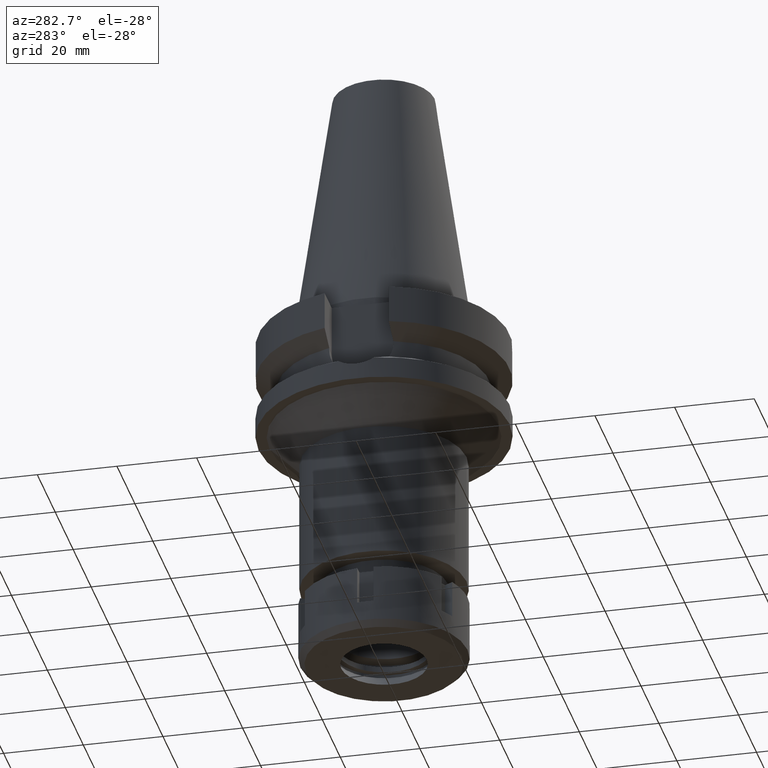
[diagram: clean part render]
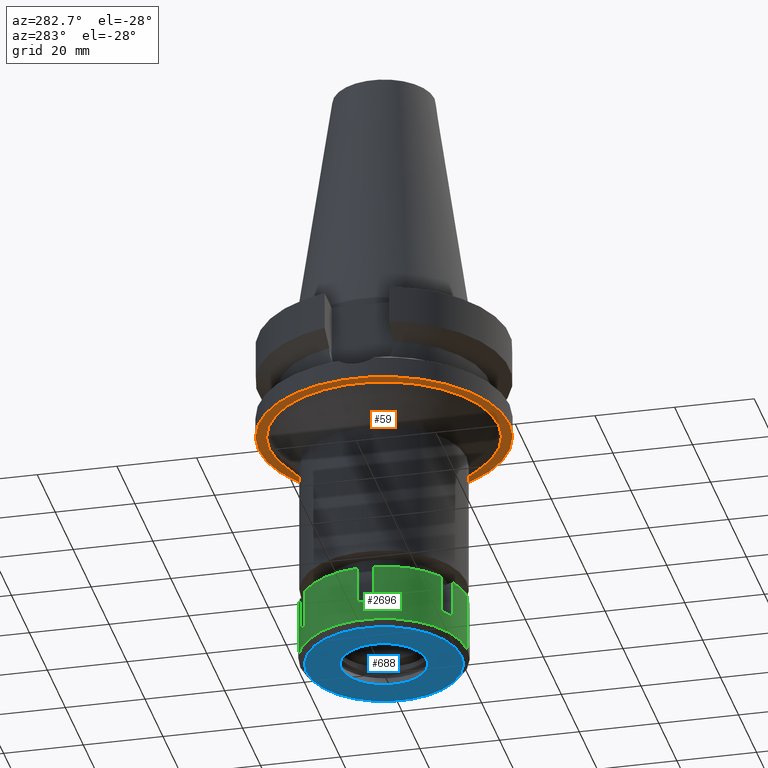
[diagram: same view with three faces highlighted in distinct colors, each labeled with its STEP entity id]
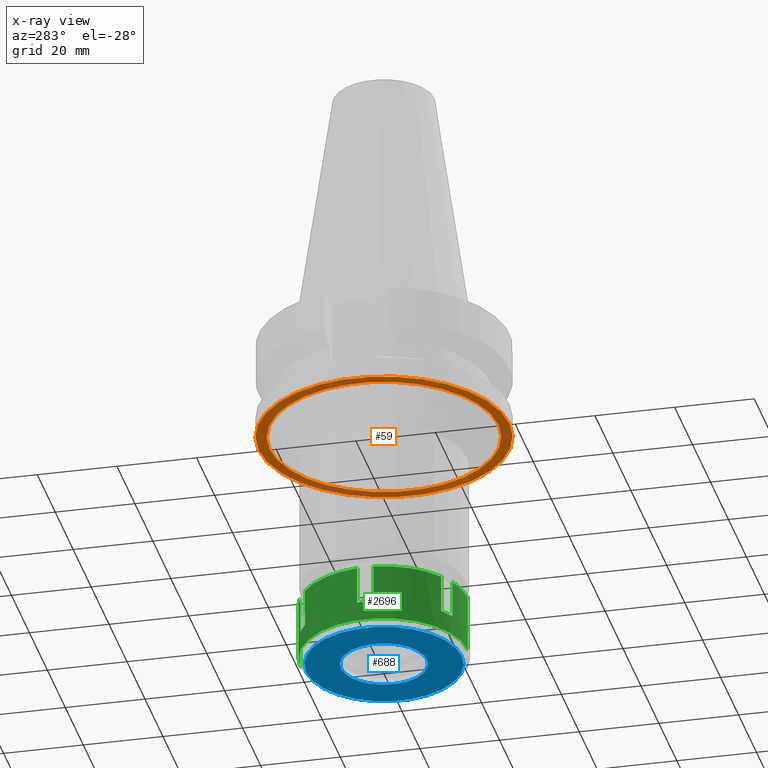
[diagram: x-ray of the same camera — body ghosted, the three highlighted faces saturated]
A machine part, auxiliary view with three faces highlighted in distinct colors.
The next image is the same camera in x-ray (body ghosted, the three faces saturated) — at least one of them is partly hidden behind the body in this view.
Their STEP definitions:

[orange] entity #59 — the highlighted planar face has unit normal (0, 0, -1).
#8 = CARTESIAN_POINT ( 'NONE',  ( 0.0000000000000000000, -28.75000000000000000, -27.00000000000000000 ) ) ;
#13 = DIRECTION ( 'NONE',  ( 0.0000000000000000000, -1.000000000000000000, 0.0000000000000000000 ) ) ;
#59 = ADVANCED_FACE ( 'NONE', ( #1862, #578 ), #1322, .T. ) ;
#101 = AXIS2_PLACEMENT_3D ( 'NONE', #1651, #817, #3269 ) ;
#266 = CARTESIAN_POINT ( 'NONE',  ( 0.0000000000000000000, 28.75000000000000000, -27.00000000000000000 ) ) ;
#277 = CARTESIAN_POINT ( 'NONE',  ( 0.0000000000000000000, -31.50000000000000000, -27.00000000000000000 ) ) ;
#327 = CARTESIAN_POINT ( 'NONE',  ( 0.0000000000000000000, 2.115822274886999895E-14, -27.00000000000000000 ) ) ;
#329 = EDGE_LOOP ( 'NONE', ( #2249, #577 ) ) ;
#470 = VERTEX_POINT ( 'NONE', #277 ) ;
#577 = ORIENTED_EDGE ( 'NONE', *, *, #944, .F. ) ;
#578 = FACE_BOUND ( 'NONE', #329, .T. ) ;
#735 = AXIS2_PLACEMENT_3D ( 'NONE', #2623, #2322, #1775 ) ;
#758 = DIRECTION ( 'NONE',  ( 0.0000000000000000000, 1.000000000000000000, 0.0000000000000000000 ) ) ;
#768 = EDGE_CURVE ( 'NONE', #470, #1484, #3508, .T. ) ;
#780 = CARTESIAN_POINT ( 'NONE',  ( 0.0000000000000000000, 0.0000000000000000000, -27.00000000000000000 ) ) ;
#817 = DIRECTION ( 'NONE',  ( 0.0000000000000000000, 0.0000000000000000000, -1.000000000000000000 ) ) ;
#908 = CIRCLE ( 'NONE', #3229, 28.75000000000000000 ) ;
#944 = EDGE_CURVE ( 'NONE', #2593, #2544, #908, .T. ) ;
#1295 = AXIS2_PLACEMENT_3D ( 'NONE', #3454, #3204, #758 ) ;
#1322 = PLANE ( 'NONE',  #101 ) ;
#1346 = DIRECTION ( 'NONE',  ( 0.0000000000000000000, 0.0000000000000000000, -1.000000000000000000 ) ) ;
#1484 = VERTEX_POINT ( 'NONE', #3079 ) ;
#1651 = CARTESIAN_POINT ( 'NONE',  ( 0.0000000000000000000, 0.0000000000000000000, -27.00000000000000000 ) ) ;
#1658 = DIRECTION ( 'NONE',  ( 0.0000000000000000000, 0.0000000000000000000, 1.000000000000000000 ) ) ;
#1775 = DIRECTION ( 'NONE',  ( 0.0000000000000000000, 1.000000000000000000, 0.0000000000000000000 ) ) ;
#1862 = FACE_OUTER_BOUND ( 'NONE', #2752, .T. ) ;
#1979 = AXIS2_PLACEMENT_3D ( 'NONE', #327, #1658, #13 ) ;
#2249 = ORIENTED_EDGE ( 'NONE', *, *, #2339, .F. ) ;
#2251 = ORIENTED_EDGE ( 'NONE', *, *, #768, .F. ) ;
#2322 = DIRECTION ( 'NONE',  ( 0.0000000000000000000, 0.0000000000000000000, 1.000000000000000000 ) ) ;
#2339 = EDGE_CURVE ( 'NONE', #2544, #2593, #3502, .T. ) ;
#2532 = ORIENTED_EDGE ( 'NONE', *, *, #3419, .F. ) ;
#2544 = VERTEX_POINT ( 'NONE', #266 ) ;
#2593 = VERTEX_POINT ( 'NONE', #8 ) ;
#2623 = CARTESIAN_POINT ( 'NONE',  ( 0.0000000000000000000, 2.115822274886999895E-14, -27.00000000000000000 ) ) ;
#2752 = EDGE_LOOP ( 'NONE', ( #2532, #2251 ) ) ;
#3079 = CARTESIAN_POINT ( 'NONE',  ( 0.0000000000000000000, 31.50000000000000000, -27.00000000000000000 ) ) ;
#3204 = DIRECTION ( 'NONE',  ( 0.0000000000000000000, 0.0000000000000000000, -1.000000000000000000 ) ) ;
#3229 = AXIS2_PLACEMENT_3D ( 'NONE', #780, #1346, #3250 ) ;
#3250 = DIRECTION ( 'NONE',  ( 0.0000000000000000000, -1.000000000000000000, 0.0000000000000000000 ) ) ;
#3269 = DIRECTION ( 'NONE',  ( 0.0000000000000000000, -1.000000000000000000, 0.0000000000000000000 ) ) ;
#3419 = EDGE_CURVE ( 'NONE', #1484, #470, #3505, .T. ) ;
#3454 = CARTESIAN_POINT ( 'NONE',  ( 0.0000000000000000000, 0.0000000000000000000, -27.00000000000000000 ) ) ;
#3502 = CIRCLE ( 'NONE', #1295, 28.75000000000000000 ) ;
#3505 = CIRCLE ( 'NONE', #735, 31.50000000000000000 ) ;
#3508 = CIRCLE ( 'NONE', #1979, 31.50000000000000000 ) ;

[blue] entity #688 — the highlighted planar face has unit normal (0, 0, -1).
#44 = DIRECTION ( 'NONE',  ( 0.0000000000000000000, 0.0000000000000000000, 1.000000000000000000 ) ) ;
#105 = AXIS2_PLACEMENT_3D ( 'NONE', #2511, #3334, #403 ) ;
#117 = VERTEX_POINT ( 'NONE', #497 ) ;
#247 = EDGE_LOOP ( 'NONE', ( #1489, #2268 ) ) ;
#314 = ORIENTED_EDGE ( 'NONE', *, *, #2126, .F. ) ;
#317 = CARTESIAN_POINT ( 'NONE',  ( 0.0000000000000000000, 0.0000000000000000000, -16.00000000000000000 ) ) ;
#367 = DIRECTION ( 'NONE',  ( 0.0000000000000000000, 0.0000000000000000000, 1.000000000000000000 ) ) ;
#397 = AXIS2_PLACEMENT_3D ( 'NONE', #2549, #367, #1221 ) ;
#403 = DIRECTION ( 'NONE',  ( 0.0000000000000000000, -1.000000000000000000, 0.0000000000000000000 ) ) ;
#415 = CARTESIAN_POINT ( 'NONE',  ( 0.0000000000000000000, -10.75000000000000000, -16.00000000000000000 ) ) ;
#497 = CARTESIAN_POINT ( 'NONE',  ( 0.0000000000000000000, 19.50000000000000000, -16.00000000000000000 ) ) ;
#651 = CARTESIAN_POINT ( 'NONE',  ( 0.0000000000000000000, 10.75000000000000000, -16.00000000000000000 ) ) ;
#671 = EDGE_CURVE ( 'NONE', #2633, #117, #793, .T. ) ;
#688 = ADVANCED_FACE ( 'NONE', ( #976, #3425 ), #3183, .T. ) ;
#793 = CIRCLE ( 'NONE', #2704, 19.50000000000000000 ) ;
#875 = CARTESIAN_POINT ( 'NONE',  ( 0.0000000000000000000, -19.50000000000000000, -16.00000000000000000 ) ) ;
#901 = CIRCLE ( 'NONE', #1249, 10.75000000000000000 ) ;
#964 = DIRECTION ( 'NONE',  ( 0.0000000000000000000, 0.0000000000000000000, -1.000000000000000000 ) ) ;
#976 = FACE_OUTER_BOUND ( 'NONE', #1212, .T. ) ;
#990 = DIRECTION ( 'NONE',  ( 0.0000000000000000000, -1.000000000000000000, 0.0000000000000000000 ) ) ;
#1148 = DIRECTION ( 'NONE',  ( 0.0000000000000000000, -1.000000000000000000, 0.0000000000000000000 ) ) ;
#1212 = EDGE_LOOP ( 'NONE', ( #314, #1756 ) ) ;
#1221 = DIRECTION ( 'NONE',  ( 0.0000000000000000000, 1.000000000000000000, 0.0000000000000000000 ) ) ;
#1223 = CARTESIAN_POINT ( 'NONE',  ( 0.0000000000000000000, 0.0000000000000000000, -16.00000000000000000 ) ) ;
#1249 = AXIS2_PLACEMENT_3D ( 'NONE', #1223, #964, #3137 ) ;
#1468 = CIRCLE ( 'NONE', #397, 19.50000000000000000 ) ;
#1489 = ORIENTED_EDGE ( 'NONE', *, *, #1720, .F. ) ;
#1720 = EDGE_CURVE ( 'NONE', #2755, #1837, #901, .T. ) ;
#1756 = ORIENTED_EDGE ( 'NONE', *, *, #671, .F. ) ;
#1837 = VERTEX_POINT ( 'NONE', #415 ) ;
#2082 = CIRCLE ( 'NONE', #105, 10.75000000000000000 ) ;
#2126 = EDGE_CURVE ( 'NONE', #117, #2633, #1468, .T. ) ;
#2138 = EDGE_CURVE ( 'NONE', #1837, #2755, #2082, .T. ) ;
#2268 = ORIENTED_EDGE ( 'NONE', *, *, #2138, .F. ) ;
#2511 = CARTESIAN_POINT ( 'NONE',  ( 0.0000000000000000000, 0.0000000000000000000, -16.00000000000000000 ) ) ;
#2549 = CARTESIAN_POINT ( 'NONE',  ( 0.0000000000000000000, 0.0000000000000000000, -16.00000000000000000 ) ) ;
#2601 = DIRECTION ( 'NONE',  ( 0.0000000000000000000, 0.0000000000000000000, -1.000000000000000000 ) ) ;
#2633 = VERTEX_POINT ( 'NONE', #875 ) ;
#2704 = AXIS2_PLACEMENT_3D ( 'NONE', #317, #44, #1148 ) ;
#2755 = VERTEX_POINT ( 'NONE', #651 ) ;
#2767 = AXIS2_PLACEMENT_3D ( 'NONE', #3400, #2601, #990 ) ;
#3137 = DIRECTION ( 'NONE',  ( 0.0000000000000000000, 1.000000000000000000, 0.0000000000000000000 ) ) ;
#3183 = PLANE ( 'NONE',  #2767 ) ;
#3334 = DIRECTION ( 'NONE',  ( 0.0000000000000000000, 0.0000000000000000000, -1.000000000000000000 ) ) ;
#3400 = CARTESIAN_POINT ( 'NONE',  ( 0.0000000000000000000, 0.0000000000000000000, -16.00000000000000000 ) ) ;
#3425 = FACE_BOUND ( 'NONE', #247, .T. ) ;

[green] entity #2696 — the highlighted cylindrical surface (partial cylindrical patch) has radius 21 mm, axis along (0, 0, -1).
#3 = DIRECTION ( 'NONE',  ( 0.0000000000000000000, 1.000000000000000000, 0.0000000000000000000 ) ) ;
#66 = ORIENTED_EDGE ( 'NONE', *, *, #2187, .F. ) ;
#100 = CARTESIAN_POINT ( 'NONE',  ( 0.0000000000000000000, 0.0000000000000000000, 0.0000000000000000000 ) ) ;
#115 = VERTEX_POINT ( 'NONE', #1583 ) ;
#144 = CARTESIAN_POINT ( 'NONE',  ( -12.18432328774999895, 17.10386699022999935, 0.0000000000000000000 ) ) ;
#154 = LINE ( 'NONE', #938, #3167 ) ;
#199 = CARTESIAN_POINT ( 'NONE',  ( -12.18432328774999895, -17.10386699022999935, 0.0000000000000000000 ) ) ;
#253 = DIRECTION ( 'NONE',  ( -0.9954545219222313834, -0.09523809523810303213, 0.0000000000000000000 ) ) ;
#261 = CARTESIAN_POINT ( 'NONE',  ( -20.90454496036999998, 2.000000000000000000, 0.0000000000000000000 ) ) ;
#286 = VERTEX_POINT ( 'NONE', #1443 ) ;
#299 = EDGE_CURVE ( 'NONE', #2487, #3056, #2763, .T. ) ;
#302 = EDGE_CURVE ( 'NONE', #2487, #115, #2542, .T. ) ;
#305 = CARTESIAN_POINT ( 'NONE',  ( 0.0000000000000000000, 0.0000000000000000000, 0.0000000000000000000 ) ) ;
#322 = DIRECTION ( 'NONE',  ( 0.0000000000000000000, -1.000000000000000000, 0.0000000000000000000 ) ) ;
#392 = DIRECTION ( 'NONE',  ( -0.4152486510768949035, 0.9097079519157886818, 0.0000000000000000000 ) ) ;
#398 = VECTOR ( 'NONE', #3284, 1000.000000000000000 ) ;
#478 = EDGE_CURVE ( 'NONE', #3056, #2706, #2502, .T. ) ;
#509 = VECTOR ( 'NONE', #3470, 1000.000000000000000 ) ;
#548 = CARTESIAN_POINT ( 'NONE',  ( 0.0000000000000000000, 21.00000000000000000, 0.0000000000000000000 ) ) ;
#566 = VECTOR ( 'NONE', #3135, 1000.000000000000000 ) ;
#568 = CIRCLE ( 'NONE', #903, 21.00000000000000711 ) ;
#585 = DIRECTION ( 'NONE',  ( 0.0000000000000000000, 0.0000000000000000000, -1.000000000000000000 ) ) ;
#635 = DIRECTION ( 'NONE',  ( 0.0000000000000000000, -1.000000000000000000, 0.0000000000000000000 ) ) ;
#660 = EDGE_CURVE ( 'NONE', #3525, #1653, #2639, .T. ) ;
#674 = VECTOR ( 'NONE', #679, 1000.000000000000000 ) ;
#677 = DIRECTION ( 'NONE',  ( 0.0000000000000000000, 0.0000000000000000000, -1.000000000000000000 ) ) ;
#679 = DIRECTION ( 'NONE',  ( 0.0000000000000000000, 0.0000000000000000000, -1.000000000000000000 ) ) ;
#685 = DIRECTION ( 'NONE',  ( 0.0000000000000000000, 0.0000000000000000000, -1.000000000000000000 ) ) ;
#728 = CARTESIAN_POINT ( 'NONE',  ( -8.720221672615000585, 19.10386699022999935, 0.0000000000000000000 ) ) ;
#765 = VERTEX_POINT ( 'NONE', #199 ) ;
#782 = EDGE_CURVE ( 'NONE', #3511, #1280, #568, .T. ) ;
#812 = DIRECTION ( 'NONE',  ( 0.0000000000000000000, 0.0000000000000000000, -1.000000000000000000 ) ) ;
#843 = ORIENTED_EDGE ( 'NONE', *, *, #3093, .T. ) ;
#884 = ORIENTED_EDGE ( 'NONE', *, *, #1993, .T. ) ;
#903 = AXIS2_PLACEMENT_3D ( 'NONE', #2379, #2913, #1874 ) ;
#938 = CARTESIAN_POINT ( 'NONE',  ( 0.0000000000000000000, -21.00000000000000000, 0.0000000000000000000 ) ) ;
#973 = CARTESIAN_POINT ( 'NONE',  ( -12.18432328774999895, 17.10386699022999935, -9.500000000000000000 ) ) ;
#989 = EDGE_CURVE ( 'NONE', #3525, #286, #2401, .T. ) ;
#1005 = DIRECTION ( 'NONE',  ( 0.0000000000000000000, 0.0000000000000000000, 1.000000000000000000 ) ) ;
#1145 = VERTEX_POINT ( 'NONE', #1279 ) ;
#1180 = CARTESIAN_POINT ( 'NONE',  ( -8.720221672615000585, -19.10386699022999935, -9.500000000000000000 ) ) ;
#1185 = CARTESIAN_POINT ( 'NONE',  ( 0.0000000000000000000, 0.0000000000000000000, 0.0000000000000000000 ) ) ;
#1188 = ORIENTED_EDGE ( 'NONE', *, *, #989, .F. ) ;
#1189 = CIRCLE ( 'NONE', #3278, 20.99999999999999289 ) ;
#1228 = CARTESIAN_POINT ( 'NONE',  ( 0.0000000000000000000, -21.00000000000000000, 0.0000000000000000000 ) ) ;
#1231 = CARTESIAN_POINT ( 'NONE',  ( 0.0000000000000000000, 21.00000000000000000, -14.50000000000000000 ) ) ;
#1279 = CARTESIAN_POINT ( 'NONE',  ( -20.90454496036999998, -2.000000000000000000, 0.0000000000000000000 ) ) ;
#1280 = VERTEX_POINT ( 'NONE', #2049 ) ;
#1304 = AXIS2_PLACEMENT_3D ( 'NONE', #100, #2814, #392 ) ;
#1336 = CARTESIAN_POINT ( 'NONE',  ( 0.0000000000000000000, 0.0000000000000000000, -9.500000000000000000 ) ) ;
#1387 = CARTESIAN_POINT ( 'NONE',  ( 0.0000000000000000000, 0.0000000000000000000, -14.50000000000000000 ) ) ;
#1393 = DIRECTION ( 'NONE',  ( 0.0000000000000000000, 0.0000000000000000000, -1.000000000000000000 ) ) ;
#1398 = CARTESIAN_POINT ( 'NONE',  ( 0.0000000000000000000, -21.00000000000000000, -14.50000000000000000 ) ) ;
#1417 = CARTESIAN_POINT ( 'NONE',  ( 0.0000000000000000000, 0.0000000000000000000, -9.500000000000000000 ) ) ;
#1426 = EDGE_CURVE ( 'NONE', #765, #1145, #2128, .T. ) ;
#1442 = DIRECTION ( 'NONE',  ( 0.0000000000000000000, 0.0000000000000000000, 1.000000000000000000 ) ) ;
#1443 = CARTESIAN_POINT ( 'NONE',  ( -20.90454496036999998, 2.000000000000000000, -9.500000000000000000 ) ) ;
#1583 = CARTESIAN_POINT ( 'NONE',  ( -8.720221672615000585, 19.10386699022999935, -9.500000000000000000 ) ) ;
#1621 = CARTESIAN_POINT ( 'NONE',  ( -8.720221672615998898, -19.10386699022999935, 0.0000000000000000000 ) ) ;
#1653 = VERTEX_POINT ( 'NONE', #144 ) ;
#1711 = CYLINDRICAL_SURFACE ( 'NONE', #2525, 21.00000000000000000 ) ;
#1724 = LINE ( 'NONE', #1180, #2023 ) ;
#1731 = ORIENTED_EDGE ( 'NONE', *, *, #2565, .T. ) ;
#1739 = FACE_OUTER_BOUND ( 'NONE', #2635, .T. ) ;
#1750 = ORIENTED_EDGE ( 'NONE', *, *, #2520, .T. ) ;
#1792 = CARTESIAN_POINT ( 'NONE',  ( -12.18432328774999895, 17.10386699022999935, -9.500000000000000000 ) ) ;
#1801 = ORIENTED_EDGE ( 'NONE', *, *, #3329, .F. ) ;
#1847 = CARTESIAN_POINT ( 'NONE',  ( -20.90454496036999998, -2.000000000000000000, -9.500000000000000000 ) ) ;
#1874 = DIRECTION ( 'NONE',  ( -0.4152486510768949035, -0.9097079519157886818, 0.0000000000000000000 ) ) ;
#1879 = DIRECTION ( 'NONE',  ( 0.0000000000000000000, 0.0000000000000000000, 1.000000000000000000 ) ) ;
#1889 = DIRECTION ( 'NONE',  ( -0.5802058708454290725, -0.8144698566776411575, 0.0000000000000000000 ) ) ;
#1933 = EDGE_CURVE ( 'NONE', #3414, #1963, #154, .T. ) ;
#1963 = VERTEX_POINT ( 'NONE', #1398 ) ;
#1993 = EDGE_CURVE ( 'NONE', #2894, #115, #2025, .T. ) ;
#2016 = DIRECTION ( 'NONE',  ( 0.0000000000000000000, 0.0000000000000000000, -1.000000000000000000 ) ) ;
#2019 = AXIS2_PLACEMENT_3D ( 'NONE', #305, #3498, #322 ) ;
#2023 = VECTOR ( 'NONE', #1442, 1000.000000000000000 ) ;
#2025 = CIRCLE ( 'NONE', #2935, 21.00000000000000711 ) ;
#2049 = CARTESIAN_POINT ( 'NONE',  ( -12.18432328774999895, -17.10386699022999935, -9.500000000000000000 ) ) ;
#2128 = CIRCLE ( 'NONE', #2945, 20.99999999999999645 ) ;
#2159 = CARTESIAN_POINT ( 'NONE',  ( 0.0000000000000000000, 21.00000000000000000, 0.0000000000000000000 ) ) ;
#2165 = CARTESIAN_POINT ( 'NONE',  ( -8.720221672615000585, 19.10386699022999935, 0.0000000000000000000 ) ) ;
#2187 = EDGE_CURVE ( 'NONE', #2302, #1145, #3360, .T. ) ;
#2302 = VERTEX_POINT ( 'NONE', #1847 ) ;
#2306 = CIRCLE ( 'NONE', #2019, 21.00000000000000000 ) ;
#2358 = ORIENTED_EDGE ( 'NONE', *, *, #1933, .F. ) ;
#2379 = CARTESIAN_POINT ( 'NONE',  ( 0.0000000000000000000, 0.0000000000000000000, -9.500000000000000000 ) ) ;
#2382 = CARTESIAN_POINT ( 'NONE',  ( 0.0000000000000000000, 0.0000000000000000000, 0.0000000000000000000 ) ) ;
#2401 = LINE ( 'NONE', #261, #509 ) ;
#2467 = ORIENTED_EDGE ( 'NONE', *, *, #3316, .F. ) ;
#2474 = VECTOR ( 'NONE', #677, 1000.000000000000000 ) ;
#2487 = VERTEX_POINT ( 'NONE', #2165 ) ;
#2490 = ORIENTED_EDGE ( 'NONE', *, *, #299, .T. ) ;
#2499 = CARTESIAN_POINT ( 'NONE',  ( -8.720221672615998898, -19.10386699022999935, -9.500000000000000000 ) ) ;
#2502 = LINE ( 'NONE', #548, #398 ) ;
#2520 = EDGE_CURVE ( 'NONE', #2302, #286, #1189, .T. ) ;
#2525 = AXIS2_PLACEMENT_3D ( 'NONE', #2819, #685, #635 ) ;
#2542 = LINE ( 'NONE', #728, #674 ) ;
#2565 = EDGE_CURVE ( 'NONE', #3414, #3481, #2306, .T. ) ;
#2635 = EDGE_LOOP ( 'NONE', ( #2727, #2490, #2765, #843, #2358, #1731, #2467, #3138, #1801, #3445, #66, #1750, #1188, #3049, #2914, #884 ) ) ;
#2639 = CIRCLE ( 'NONE', #2936, 20.99999999999999289 ) ;
#2696 = ADVANCED_FACE ( 'NONE', ( #1739 ), #1711, .T. ) ;
#2706 = VERTEX_POINT ( 'NONE', #1231 ) ;
#2717 = DIRECTION ( 'NONE',  ( -0.5802058708453158298, 0.8144698566777217597, 0.0000000000000000000 ) ) ;
#2727 = ORIENTED_EDGE ( 'NONE', *, *, #302, .F. ) ;
#2763 = CIRCLE ( 'NONE', #1304, 21.00000000000000711 ) ;
#2765 = ORIENTED_EDGE ( 'NONE', *, *, #478, .T. ) ;
#2786 = LINE ( 'NONE', #2800, #2474 ) ;
#2800 = CARTESIAN_POINT ( 'NONE',  ( -12.18432328774999895, -17.10386699022999935, 0.0000000000000000000 ) ) ;
#2814 = DIRECTION ( 'NONE',  ( 0.0000000000000000000, 0.0000000000000000000, -1.000000000000000000 ) ) ;
#2819 = CARTESIAN_POINT ( 'NONE',  ( 0.0000000000000000000, 0.0000000000000000000, 0.0000000000000000000 ) ) ;
#2894 = VERTEX_POINT ( 'NONE', #1792 ) ;
#2903 = EDGE_CURVE ( 'NONE', #2894, #1653, #3422, .T. ) ;
#2913 = DIRECTION ( 'NONE',  ( 0.0000000000000000000, 0.0000000000000000000, -1.000000000000000000 ) ) ;
#2914 = ORIENTED_EDGE ( 'NONE', *, *, #2903, .F. ) ;
#2935 = AXIS2_PLACEMENT_3D ( 'NONE', #1417, #585, #2717 ) ;
#2936 = AXIS2_PLACEMENT_3D ( 'NONE', #1185, #3086, #3047 ) ;
#2945 = AXIS2_PLACEMENT_3D ( 'NONE', #2382, #812, #1889 ) ;
#2993 = VECTOR ( 'NONE', #1005, 1000.000000000000000 ) ;
#3047 = DIRECTION ( 'NONE',  ( -0.9954545219222313834, 0.09523809523810303213, 0.0000000000000000000 ) ) ;
#3049 = ORIENTED_EDGE ( 'NONE', *, *, #660, .T. ) ;
#3056 = VERTEX_POINT ( 'NONE', #2159 ) ;
#3086 = DIRECTION ( 'NONE',  ( 0.0000000000000000000, 0.0000000000000000000, -1.000000000000000000 ) ) ;
#3093 = EDGE_CURVE ( 'NONE', #2706, #1963, #3503, .T. ) ;
#3102 = CARTESIAN_POINT ( 'NONE',  ( -20.90454496036999998, -2.000000000000000000, -9.500000000000000000 ) ) ;
#3135 = DIRECTION ( 'NONE',  ( 0.0000000000000000000, 0.0000000000000000000, 1.000000000000000000 ) ) ;
#3138 = ORIENTED_EDGE ( 'NONE', *, *, #782, .T. ) ;
#3167 = VECTOR ( 'NONE', #2016, 1000.000000000000000 ) ;
#3221 = AXIS2_PLACEMENT_3D ( 'NONE', #1387, #1879, #3 ) ;
#3261 = CARTESIAN_POINT ( 'NONE',  ( -20.90454496036999998, 2.000000000000000000, 0.0000000000000000000 ) ) ;
#3278 = AXIS2_PLACEMENT_3D ( 'NONE', #1336, #1393, #253 ) ;
#3284 = DIRECTION ( 'NONE',  ( 0.0000000000000000000, 0.0000000000000000000, -1.000000000000000000 ) ) ;
#3316 = EDGE_CURVE ( 'NONE', #3511, #3481, #1724, .T. ) ;
#3329 = EDGE_CURVE ( 'NONE', #765, #1280, #2786, .T. ) ;
#3360 = LINE ( 'NONE', #3102, #566 ) ;
#3414 = VERTEX_POINT ( 'NONE', #1228 ) ;
#3422 = LINE ( 'NONE', #973, #2993 ) ;
#3445 = ORIENTED_EDGE ( 'NONE', *, *, #1426, .T. ) ;
#3470 = DIRECTION ( 'NONE',  ( 0.0000000000000000000, 0.0000000000000000000, -1.000000000000000000 ) ) ;
#3481 = VERTEX_POINT ( 'NONE', #1621 ) ;
#3498 = DIRECTION ( 'NONE',  ( 0.0000000000000000000, 0.0000000000000000000, -1.000000000000000000 ) ) ;
#3503 = CIRCLE ( 'NONE', #3221, 21.00000000000000000 ) ;
#3511 = VERTEX_POINT ( 'NONE', #2499 ) ;
#3525 = VERTEX_POINT ( 'NONE', #3261 ) ;